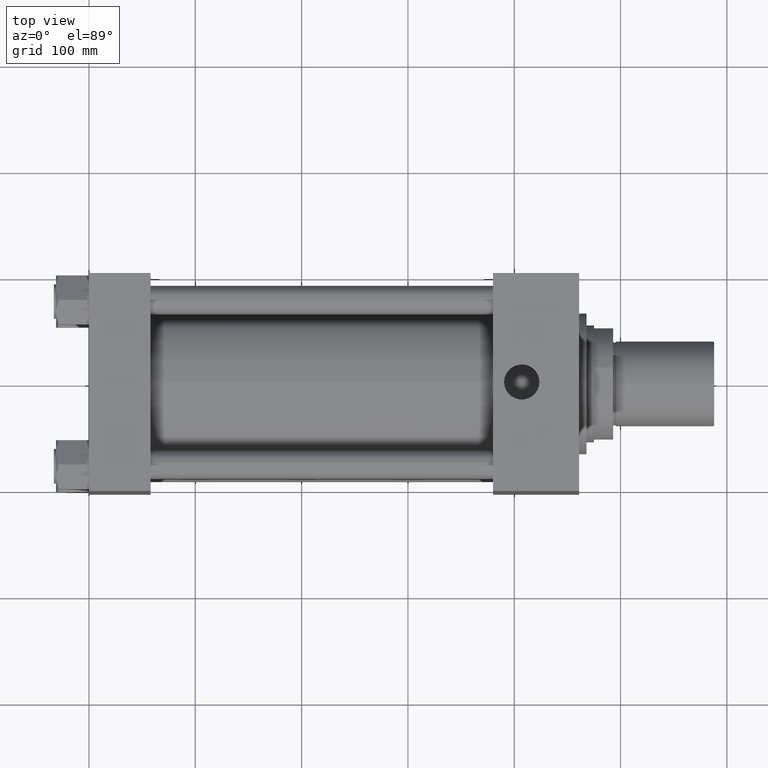
[diagram: clean part render]
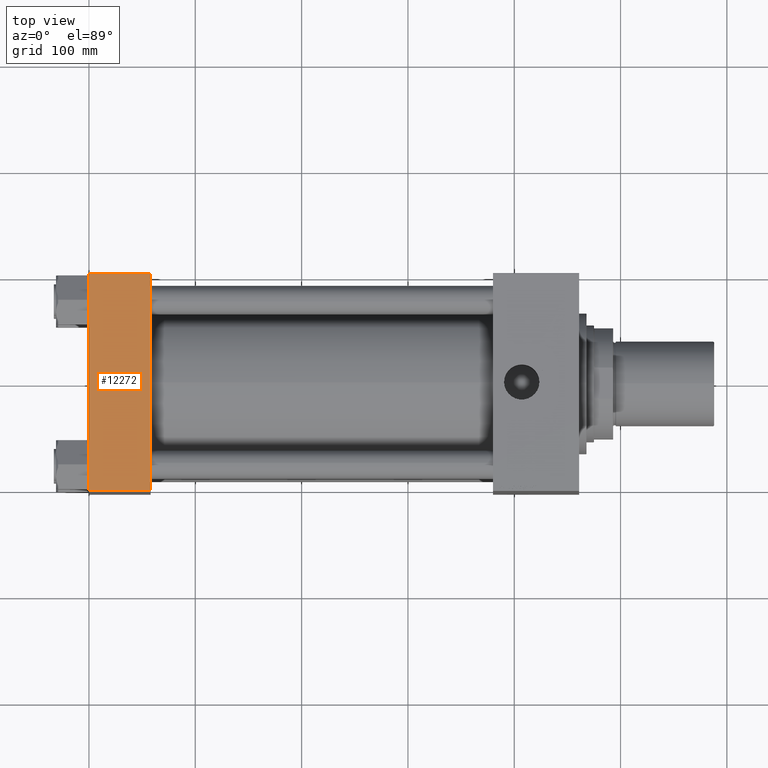
[diagram: same view with one face highlighted and labeled with its STEP entity id]
A machine part, top view. The second image highlights one B-rep face of the part: STEP entity #12272.
In plain terms, the highlighted planar face has unit normal (0, 0, -1).
Its self-contained STEP definition (entity closure, byte-faithful):
#732 = EDGE_CURVE ( 'NONE', #9851, #16595, #1526, .T. ) ;
#1526 = LINE ( 'NONE', #34441, #37413 ) ;
#2645 = AXIS2_PLACEMENT_3D ( 'NONE', #48676, #49208, #17322 ) ;
#4080 = CARTESIAN_POINT ( 'NONE',  ( 58.00000000000000000, -101.9999999999999147, 102.5000000000000000 ) ) ;
#5988 = ORIENTED_EDGE ( 'NONE', *, *, #732, .T. ) ;
#9026 = FACE_OUTER_BOUND ( 'NONE', #41536, .T. ) ;
#9597 = VERTEX_POINT ( 'NONE', #27738 ) ;
#9851 = VERTEX_POINT ( 'NONE', #47256 ) ;
#11142 = EDGE_CURVE ( 'NONE', #9597, #11245, #47995, .T. ) ;
#11245 = VERTEX_POINT ( 'NONE', #4080 ) ;
#12272 = ADVANCED_FACE ( 'NONE', ( #9026 ), #16526, .F. ) ;
#16526 = PLANE ( 'NONE',  #2645 ) ;
#16595 = VERTEX_POINT ( 'NONE', #31159 ) ;
#17322 = DIRECTION ( 'NONE',  ( 0.000000000000000000, 1.000000000000000000, 1.353930517835556973E-16 ) ) ;
#17957 = LINE ( 'NONE', #25990, #35295 ) ;
#17971 = EDGE_CURVE ( 'NONE', #9851, #11245, #17957, .T. ) ;
#25990 = CARTESIAN_POINT ( 'NONE',  ( 58.00000000000000000, 102.5000000000000284, 102.5000000000000284 ) ) ;
#27738 = CARTESIAN_POINT ( 'NONE',  ( 0.000000000000000000, -101.9999999999999147, 102.5000000000000000 ) ) ;
#31159 = CARTESIAN_POINT ( 'NONE',  ( 0.000000000000000000, 102.0000000000000142, 102.5000000000000284 ) ) ;
#31359 = CARTESIAN_POINT ( 'NONE',  ( 58.00000000000000000, -101.9999999999999716, 102.5000000000000000 ) ) ;
#31818 = EDGE_CURVE ( 'NONE', #16595, #9597, #52844, .T. ) ;
#34441 = CARTESIAN_POINT ( 'NONE',  ( 0.000000000000000000, 102.0000000000000142, 102.5000000000000284 ) ) ;
#34687 = VECTOR ( 'NONE', #52322, 1000.000000000000000 ) ;
#34805 = ORIENTED_EDGE ( 'NONE', *, *, #17971, .F. ) ;
#35295 = VECTOR ( 'NONE', #45312, 1000.000000000000000 ) ;
#37413 = VECTOR ( 'NONE', #51316, 1000.000000000000000 ) ;
#41536 = EDGE_LOOP ( 'NONE', ( #43710, #46868, #34805, #5988 ) ) ;
#43710 = ORIENTED_EDGE ( 'NONE', *, *, #31818, .T. ) ;
#45312 = DIRECTION ( 'NONE',  ( 0.000000000000000000, -1.000000000000000000, -1.353930517835556973E-16 ) ) ;
#46868 = ORIENTED_EDGE ( 'NONE', *, *, #11142, .T. ) ;
#47256 = CARTESIAN_POINT ( 'NONE',  ( 58.00000000000000000, 102.0000000000000142, 102.5000000000000284 ) ) ;
#47995 = LINE ( 'NONE', #31359, #51342 ) ;
#48294 = CARTESIAN_POINT ( 'NONE',  ( 0.000000000000000000, 102.5000000000000284, 102.5000000000000284 ) ) ;
#48676 = CARTESIAN_POINT ( 'NONE',  ( 58.00000000000000000, 102.5000000000000284, 102.5000000000000284 ) ) ;
#49208 = DIRECTION ( 'NONE',  ( 0.000000000000000000, 1.353930517835556973E-16, -1.000000000000000000 ) ) ;
#51316 = DIRECTION ( 'NONE',  ( -1.000000000000000000, 0.000000000000000000, 0.000000000000000000 ) ) ;
#51342 = VECTOR ( 'NONE', #51497, 1000.000000000000000 ) ;
#51497 = DIRECTION ( 'NONE',  ( 1.000000000000000000, 0.000000000000000000, 0.000000000000000000 ) ) ;
#52322 = DIRECTION ( 'NONE',  ( 0.000000000000000000, -1.000000000000000000, -1.353930517835556973E-16 ) ) ;
#52844 = LINE ( 'NONE', #48294, #34687 ) ;